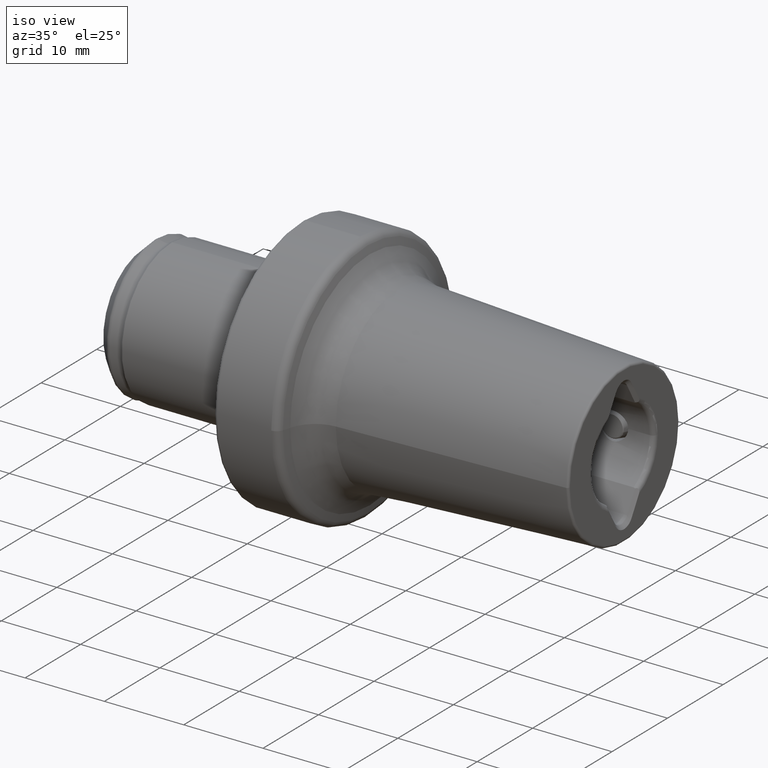
[diagram: clean part render]
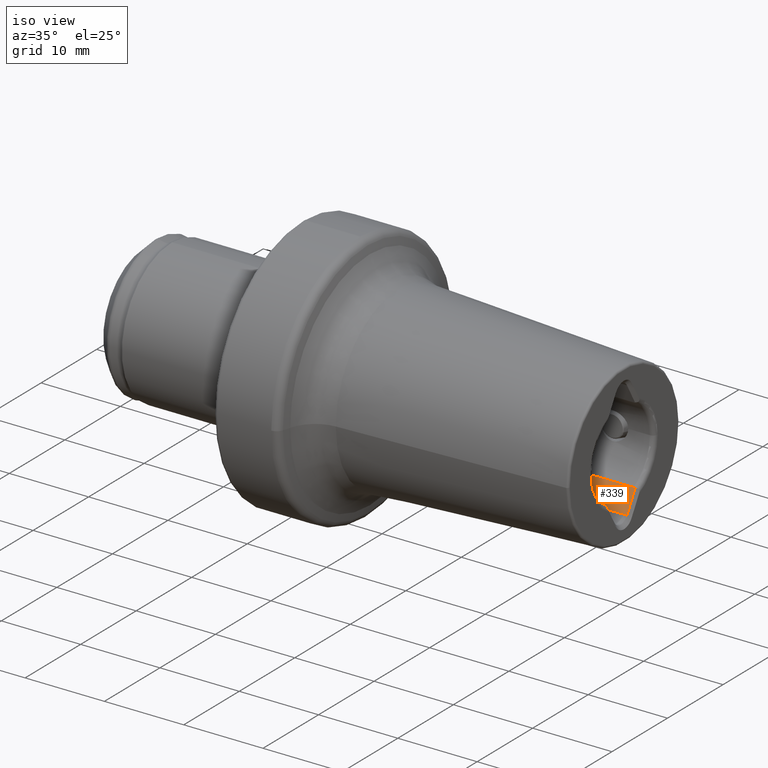
[diagram: same view with one face highlighted and labeled with its STEP entity id]
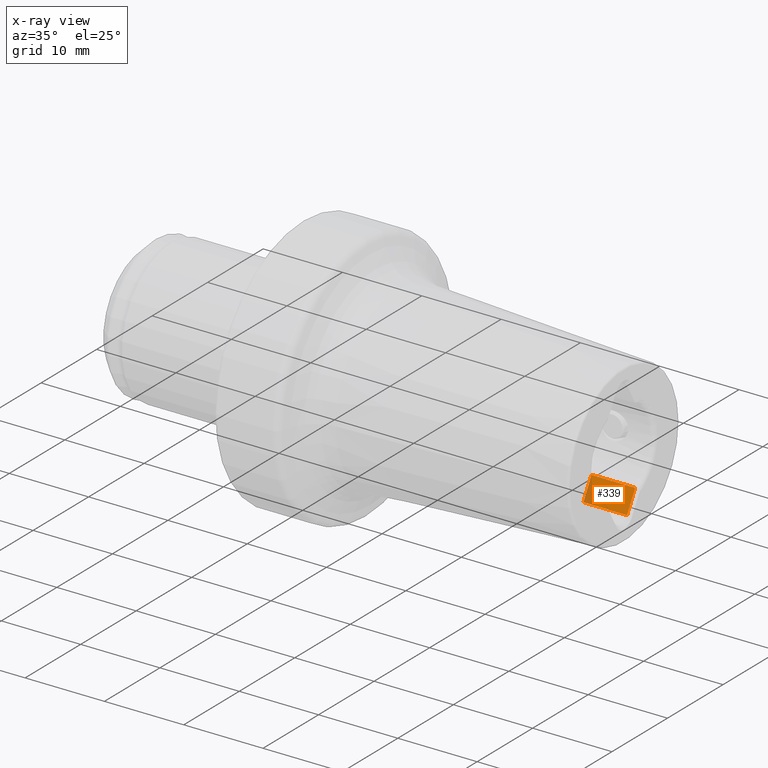
[diagram: x-ray of the same camera — body ghosted, the highlighted face saturated]
A machine part, iso view. The second image highlights one B-rep face of the part: STEP entity #339.
The next image is the same camera in x-ray: the body ghosted, the highlighted face saturated — about 14% of this face is hidden behind the body in this view.
In plain terms, the highlighted planar face has unit normal (0, 0.866, -0.5).
Its self-contained STEP definition (entity closure, byte-faithful):
#25 = ORIENTED_EDGE ( 'NONE', *, *, #4881, .F. ) ;
#239 = CARTESIAN_POINT ( 'NONE',  ( 39.97205070569616900, 2.600016371674994000, -4.846639543748018800 ) ) ;
#313 = DIRECTION ( 'NONE',  ( 1.000000000000000000, -0.0000000000000000000, -0.0000000000000000000 ) ) ;
#320 = LINE ( 'NONE', #1300, #329 ) ;
#329 = VECTOR ( 'NONE', #1313, 1000.000000000000000 ) ;
#339 = ADVANCED_FACE ( 'NONE', ( #940 ), #1636, .F. ) ;
#383 = VERTEX_POINT ( 'NONE', #879 ) ;
#458 = CARTESIAN_POINT ( 'NONE',  ( 40.10000000011267200, 2.567705156112037600, -4.902604210757369100 ) ) ;
#511 = CARTESIAN_POINT ( 'NONE',  ( 40.04083369122050600, 2.587248053283758500, -4.868754919928854000 ) ) ;
#527 = AXIS2_PLACEMENT_3D ( 'NONE', #649, #1618, #1648 ) ;
#649 = CARTESIAN_POINT ( 'NONE',  ( 34.59999999999999400, 2.600016371674995800, -4.846639543748015200 ) ) ;
#672 = CARTESIAN_POINT ( 'NONE',  ( 34.59999999999999400, 1.125833024919772100, -7.400000000000007500 ) ) ;
#879 = CARTESIAN_POINT ( 'NONE',  ( 40.10000000011267200, 2.567705156112037600, -4.902604210757369100 ) ) ;
#940 = FACE_OUTER_BOUND ( 'NONE', #4502, .T. ) ;
#1018 = VERTEX_POINT ( 'NONE', #3684 ) ;
#1064 = B_SPLINE_CURVE_WITH_KNOTS ( 'NONE', 3,
 ( #2226, #2245, #2044, #1905, #1916, #1750, #1779, #1668, #1797, #1735 ),
 .UNSPECIFIED., .F., .F.,
 ( 4, 3, 3, 4 ),
 ( 0.0000000000000000000, 0.0008569156254766498300, 0.001713831250952890700, 0.002883744262384496700 ),
 .UNSPECIFIED. ) ;
#1284 = DIRECTION ( 'NONE',  ( -0.0000000000000000000, 0.4999999999999975000, 0.8660254037844400400 ) ) ;
#1300 = CARTESIAN_POINT ( 'NONE',  ( 34.59999999999999400, 2.600016371674995800, -4.846639543748015200 ) ) ;
#1313 = DIRECTION ( 'NONE',  ( 1.000000000000000000, -0.0000000000000000000, -0.0000000000000000000 ) ) ;
#1368 = CARTESIAN_POINT ( 'NONE',  ( 39.89999999999999900, 2.600016371674995800, -4.846639543748015200 ) ) ;
#1424 = CARTESIAN_POINT ( 'NONE',  ( 34.59999999999999400, 2.600016371674995800, -4.846639543748015200 ) ) ;
#1435 = LINE ( 'NONE', #1424, #1441 ) ;
#1441 = VECTOR ( 'NONE', #1284, 1000.000000000000000 ) ;
#1618 = DIRECTION ( 'NONE',  ( 0.0000000000000000000, 0.8660254037844401500, -0.4999999999999974500 ) ) ;
#1636 = PLANE ( 'NONE',  #527 ) ;
#1648 = DIRECTION ( 'NONE',  ( 0.0000000000000000000, 0.4999999999999974500, 0.8660254037844401500 ) ) ;
#1668 = CARTESIAN_POINT ( 'NONE',  ( 40.10000001940676400, 2.177734152301490100, -5.578053802835873000 ) ) ;
#1696 = VERTEX_POINT ( 'NONE', #1368 ) ;
#1735 = CARTESIAN_POINT ( 'NONE',  ( 40.10000000011267200, 2.567705156112037600, -4.902604210757369100 ) ) ;
#1750 = CARTESIAN_POINT ( 'NONE',  ( 40.10000001463683400, 1.839929379483507700, -6.163148832395885200 ) ) ;
#1754 = B_SPLINE_CURVE_WITH_KNOTS ( 'NONE', 3,
 ( #458, #511, #239, #5012 ),
 .UNSPECIFIED., .F., .F.,
 ( 4, 4 ),
 ( 0.001499852347735851100, 0.001711025617621113500 ),
 .UNSPECIFIED. ) ;
#1779 = CARTESIAN_POINT ( 'NONE',  ( 40.10000001665349600, 1.982748650396218200, -5.915778598875125000 ) ) ;
#1797 = CARTESIAN_POINT ( 'NONE',  ( 40.10000000146448000, 2.372719654206767000, -5.240329006796623700 ) ) ;
#1818 = EDGE_CURVE ( 'NONE', #3709, #1018, #3187, .T. ) ;
#1854 = ORIENTED_EDGE ( 'NONE', *, *, #3196, .F. ) ;
#1905 = CARTESIAN_POINT ( 'NONE',  ( 40.09999999877999200, 1.554290837658091500, -6.657889299437407300 ) ) ;
#1916 = CARTESIAN_POINT ( 'NONE',  ( 40.09999995278433000, 1.697110108570800000, -6.410519065916650700 ) ) ;
#2005 = ORIENTED_EDGE ( 'NONE', *, *, #3165, .T. ) ;
#2044 = CARTESIAN_POINT ( 'NONE',  ( 40.10000004477566200, 1.411471566745319300, -6.905259532958274000 ) ) ;
#2226 = CARTESIAN_POINT ( 'NONE',  ( 40.09999987504861700, 1.125833024919770800, -7.400000000000010100 ) ) ;
#2245 = CARTESIAN_POINT ( 'NONE',  ( 40.09999964018175700, 1.268652295832496800, -7.152629766479222400 ) ) ;
#2435 = ORIENTED_EDGE ( 'NONE', *, *, #4606, .T. ) ;
#2613 = CARTESIAN_POINT ( 'NONE',  ( 34.59999999999999400, 2.600016371674995800, -4.846639543748015200 ) ) ;
#3045 = ORIENTED_EDGE ( 'NONE', *, *, #1818, .T. ) ;
#3165 = EDGE_CURVE ( 'NONE', #1018, #383, #1064, .T. ) ;
#3187 = LINE ( 'NONE', #672, #3407 ) ;
#3196 = EDGE_CURVE ( 'NONE', #3709, #3972, #1435, .T. ) ;
#3390 = CARTESIAN_POINT ( 'NONE',  ( 34.59999999999999400, 1.125833024919772100, -7.400000000000007500 ) ) ;
#3407 = VECTOR ( 'NONE', #313, 1000.000000000000000 ) ;
#3684 = CARTESIAN_POINT ( 'NONE',  ( 40.09999987504861700, 1.125833024919770800, -7.400000000000010100 ) ) ;
#3709 = VERTEX_POINT ( 'NONE', #3390 ) ;
#3972 = VERTEX_POINT ( 'NONE', #2613 ) ;
#4502 = EDGE_LOOP ( 'NONE', ( #3045, #2005, #2435, #25, #1854 ) ) ;
#4606 = EDGE_CURVE ( 'NONE', #383, #1696, #1754, .T. ) ;
#4881 = EDGE_CURVE ( 'NONE', #3972, #1696, #320, .T. ) ;
#5012 = CARTESIAN_POINT ( 'NONE',  ( 39.89999999999999900, 2.600016371674995800, -4.846639543748015200 ) ) ;